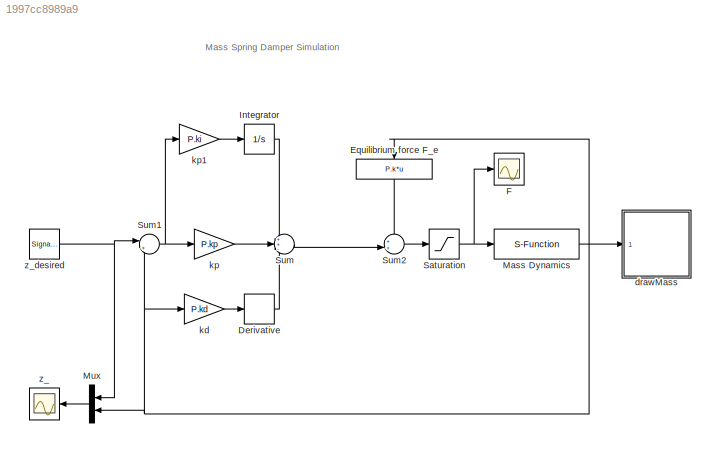
MODEL slx_1997cc8989a9
KIND model
CONFIG AbsTol = auto
CONFIG FixedStep = auto
CONFIG InitFcn = param
CONFIG MaxStep = auto
CONFIG MinStep = auto
CONFIG RelTol = 1e-3
CONFIG SampleTimeConstraint = Unconstrained
CONFIG Solver = ode45
CONFIG SolverMode = Auto
CONFIG SolverName = ode45
CONFIG StartTime = 0.0
CONFIG StopTime = 100
BLOCK [Derivative] Derivative
BLOCK [Fcn] Equilibrium force F_e
  Expr = P.k*u
BLOCK [Scope] F
  DataFormat = StructureWithTime
  Floating = off
  LimitDataPoints = off
  NumInputPorts = 1
  Ports = [1]
  SampleTime = 0
  TimeRange = 100
  YMax = 2
  YMin = -1.75
BLOCK [Integrator] Integrator
  Ports = [1, 1]
BLOCK [S-Function] Mass Dynamics
  FunctionName = mass_dynamics
  Parameters = AP
  Ports = [1, 1]
BLOCK [Mux] Mux
  DisplayOption = bar
  Inputs = 2
  Ports = [2, 1]
BLOCK [Saturate] Saturation
  InputPortMap = u0
  LowerLimit = -P.Fmax
  Ports = [1, 1]
  UpperLimit = P.Fmax
BLOCK [Sum] Sum
  IconShape = round
  InputSameDT = off
  Inputs = ++-
  OutDataTypeStr = Inherit: Inherit via internal rule
  Ports = [3, 1]
  SaturateOnIntegerOverflow = off
BLOCK [Sum] Sum1
  IconShape = round
  InputSameDT = off
  Inputs = |+-
  OutDataTypeStr = Inherit: Inherit via internal rule
  Ports = [2, 1]
  SaturateOnIntegerOverflow = off
BLOCK [Sum] Sum2
  IconShape = round
  InputSameDT = off
  Inputs = ++|
  OutDataTypeStr = Inherit: Inherit via internal rule
  Ports = [2, 1]
  SaturateOnIntegerOverflow = off
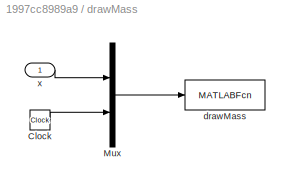
BLOCK [SubSystem] drawMass
  Ports = [1]
  RequestExecContextInheritance = off
BLOCK [Clock] drawMass/Clock
BLOCK [Mux] drawMass/Mux
  DisplayOption = bar
  Inputs = 2
  Ports = [2, 1]
BLOCK [MATLABFcn] drawMass/drawMass
  MATLABFcn = drawMSD(u)
  OutputDimensions = 0
  Ports = [1]
  SampleTime = 0.1
BLOCK [Inport] drawMass/x
  IconDisplay = Port number
BLOCK [Gain] kd
  Gain = P.kd
  OutDataTypeStr = Inherit: Inherit via internal rule
  ParamDataTypeStr = Inherit: Inherit via internal rule
  SaturateOnIntegerOverflow = off
BLOCK [Gain] kp
  Gain = P.kp
  OutDataTypeStr = Inherit: Inherit via internal rule
  ParamDataTypeStr = Inherit: Inherit via internal rule
  SaturateOnIntegerOverflow = off
BLOCK [Gain] kp1
  Gain = P.ki
  OutDataTypeStr = Inherit: Inherit via internal rule
  ParamDataTypeStr = Inherit: Inherit via internal rule
  SaturateOnIntegerOverflow = off
BLOCK [Scope] z_
  DataFormat = StructureWithTime
  Floating = off
  LimitDataPoints = off
  NumInputPorts = 1
  Ports = [1]
  SampleTime = 0
  SaveName = ScopeData1
  TimeRange = 100
  YMax = 1.5
  YMin = -2
BLOCK [SignalGenerator] z_desired
  Amplitude = .5
  Frequency = .01
  Ports = [0, 1]
  WaveForm = square
ANNOTATION (root): Mass Spring Damper Simulation
LINE Derivative:1 -> Sum:3
LINE Equilibrium force F_e:1 -> Sum2:1
LINE Integrator:1 -> Sum:1
NET Mass Dynamics:1 -> Equilibrium force F_e:1, Mux:2, Sum1:2, drawMass:1, kd:1
LINE Mux:1 -> z_:1
NET Saturation:1 -> F:1, Mass Dynamics:1
NET Sum1:1 -> kp1:1, kp:1
LINE Sum2:1 -> Saturation:1
LINE Sum:1 -> Sum2:2
LINE drawMass/Clock:1 -> drawMass/Mux:2
LINE drawMass/Mux:1 -> drawMass/drawMass:1
LINE drawMass/x:1 -> drawMass/Mux:1
LINE kd:1 -> Derivative:1
LINE kp1:1 -> Integrator:1
LINE kp:1 -> Sum:2
NET z_desired:1 -> Mux:1, Sum1:1
note: NET lines group one-source signal fan-out (src -> all destinations, sorted); 1:1 wires keep LINE
